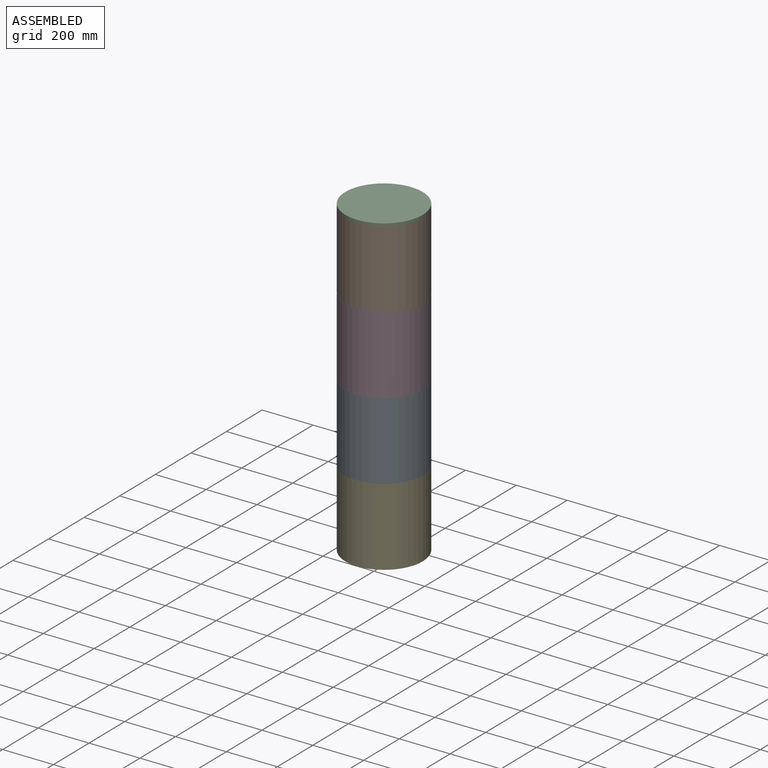
[diagram: assembled view]
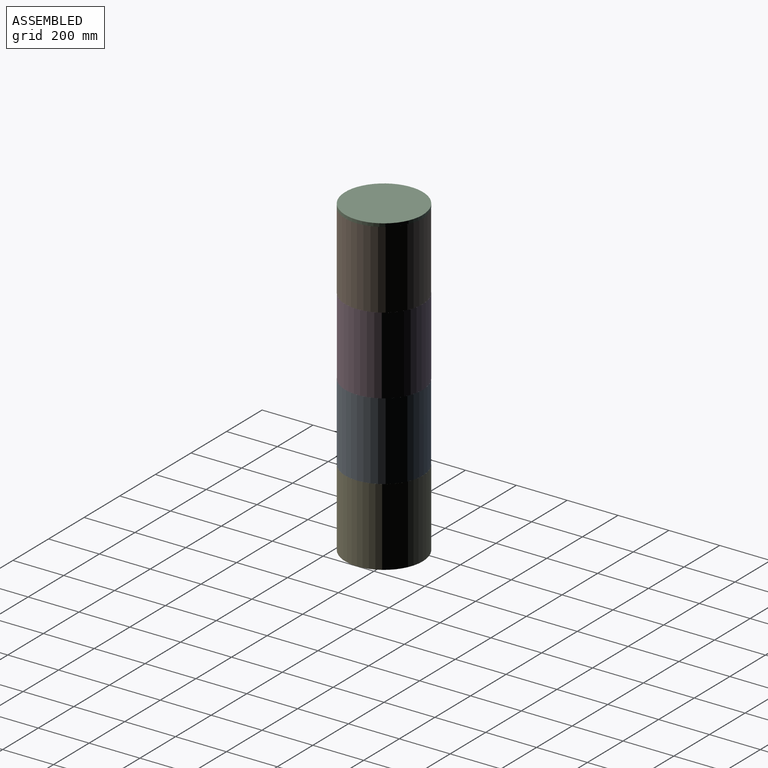
[diagram: assembled view, second angle]
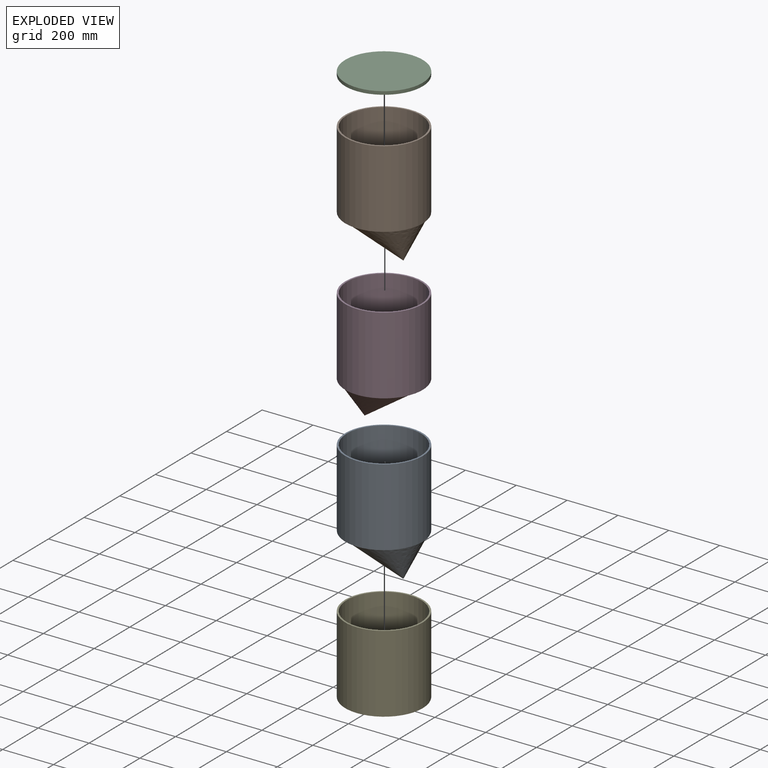
[diagram: exploded view]
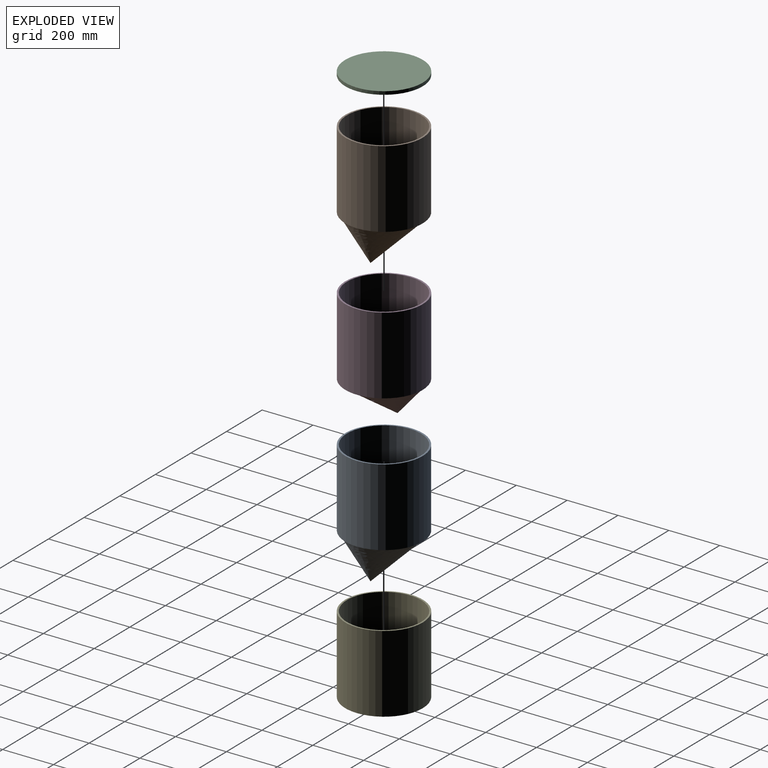
[diagram: exploded view, second angle]
ASSEMBLY  parts=5 mates=4
PART A: 10 faces, bbox 304.8x304.8x457.2 mm
  f0: cylinder r=152.4mm len=304.8mm, axis (0,0,-1), area 291863.5mm2, adj f1,f2
  f1: plane 304.8x304.8mm, normal (0,0,1), area 5953.8mm2, adj f0,f3
  f2: plane 304.8x304.8mm, normal (0,0,-1), area 5951.7mm2, adj f0,f6
  f3: cylinder r=146.05mm len=292.1mm, axis (0,0,1), area 268048.3mm2, adj f1,f4
  f4: plane 292.1x292.1mm, normal (0,0,1), area 65872mm2, adj f3,f8
  f5: plane 0.03x0.03mm, normal (0,0,-1), area 0mm2, adj f6
  f6: bspline ~292.1x292.1mm, area 97939.7mm2, adj f2,f5,f7
  f7: cylinder r=12.7mm len=183.61mm, axis (0,0,1), area 13934.3mm2, adj f6,f9
  f8: cylinder r=19.05mm len=114.3mm, axis (0,0,-1), area 13681.1mm2, adj f4,f9
  f9: plane 38.1x38.1mm, normal (0,0,1), area 633.4mm2, adj f7,f8
PART B: same geometry as A
PART C: 3 faces, bbox 304.8x304.8x12.7 mm
  f0: cylinder r=152.4mm len=304.8mm, axis (0,0,-1), area 12161mm2, adj f1,f2
  f1: plane 304.8x304.8mm, normal (0,0,1), area 72965.9mm2, adj f0
  f2: plane 304.8x304.8mm, normal (0,0,-1), area 72965.9mm2, adj f0
PART D: same geometry as A
PART E: 5 faces, bbox 304.8x304.8x304.8 mm
  f0: cylinder r=152.4mm len=304.8mm, axis (0,0,-1), area 291863.5mm2, adj f1,f2
  f1: plane 304.8x304.8mm, normal (0,0,1), area 5953.8mm2, adj f0,f3
  f2: plane 304.8x304.8mm, normal (0,0,-1), area 72965.9mm2, adj f0
  f3: cylinder r=146.05mm len=292.1mm, axis (0,0,1), area 268048.3mm2, adj f1,f4
  f4: plane 292.1x292.1mm, normal (0,0,1), area 67012.1mm2, adj f3
PLACE A t=(0,0,304.8)mm
PLACE B t=(0,0,914.4)mm
PLACE C t=(0,0,1219.2)mm
PLACE D rot(axis=(0,0,1),180deg) t=(0,0,609.6)mm
PLACE E at identity
MATE fastened A.f3 <-> D.f0  axis (0,0,1) through (0,0,609.6)mm
MATE fastened A.f0 <-> E.f3  axis (0,0,-1) through (0,0,304.8)mm
MATE fastened B.f3 <-> C.f0  axis (0,0,1) through (0,0,1219.2)mm
MATE fastened B.f0 <-> D.f3  axis (0,0,-1) through (0,0,914.4)mm
